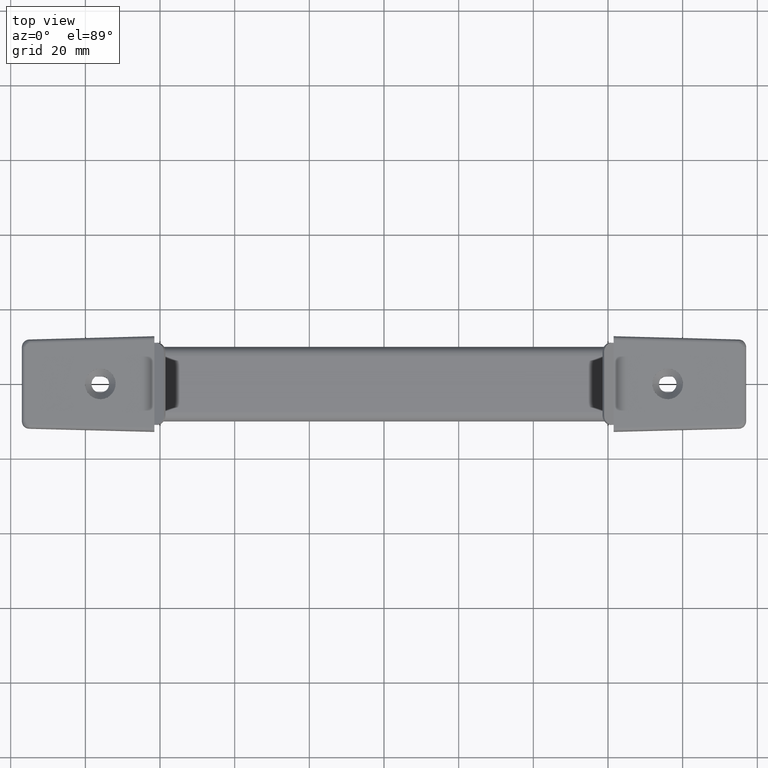
[diagram: clean part render]
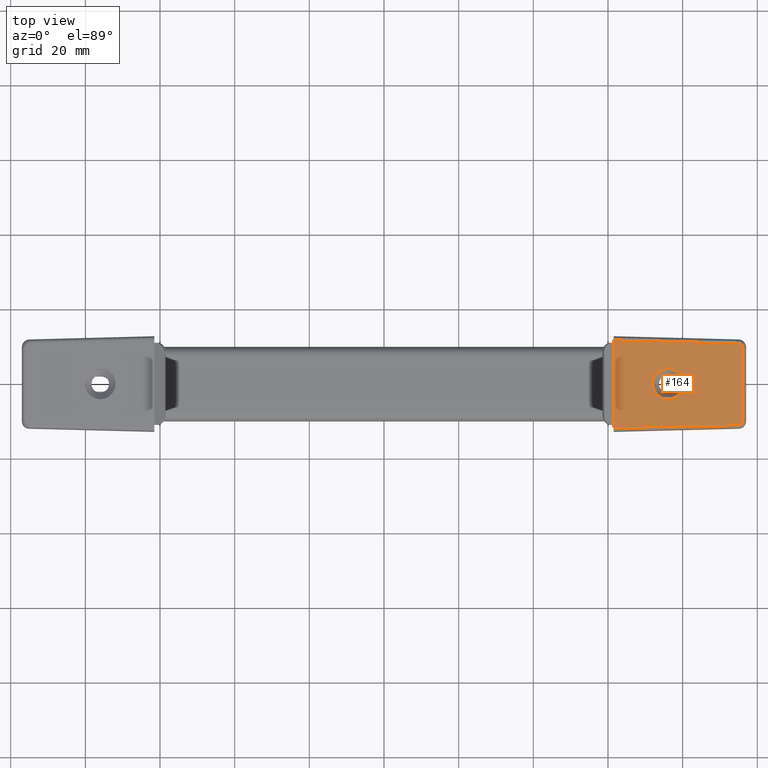
[diagram: same view with one face highlighted and labeled with its STEP entity id]
A machine part, top view. The second image highlights one B-rep face of the part: STEP entity #164.
In plain terms, the highlighted planar face has unit normal (0.0562, 0, 0.9984).
Its self-contained STEP definition (entity closure, byte-faithful):
#164=ADVANCED_FACE('',(#297,#298),#296,.T.);
#296=PLANE('',#1091);
#297=FACE_OUTER_BOUND('',#1092,.T.);
#298=FACE_BOUND('',#1093,.T.);
#1088=CARTESIAN_POINT('',(5.80448545443E+01,-1.41013067575E+01,8.69465608201E+00));
#1089=DIRECTION('',(5.62488327390E-02,0.00000000000E+00,9.98416781117E-01));
#1090=DIRECTION('',(9.98416781117E-01,0.00000000000E+00,-5.62488327390E-02));
#1091=AXIS2_PLACEMENT_3D('',#1088,#1089,#1090);
#1092=EDGE_LOOP('',(#1561,#1562,#1563,#1564,#1565,#1566,#1567,#1568));
#1093=EDGE_LOOP('',(#1569,#1570));
#1561=ORIENTED_EDGE('',*,*,#1931,.T.);
#1562=ORIENTED_EDGE('',*,*,#1956,.T.);
#1563=ORIENTED_EDGE('',*,*,#1941,.F.);
#1564=ORIENTED_EDGE('',*,*,#1957,.T.);
#1565=ORIENTED_EDGE('',*,*,#1958,.F.);
#1566=ORIENTED_EDGE('',*,*,#1959,.T.);
#1567=ORIENTED_EDGE('',*,*,#1960,.T.);
#1568=ORIENTED_EDGE('',*,*,#1961,.T.);
#1569=ORIENTED_EDGE('',*,*,#1962,.T.);
#1570=ORIENTED_EDGE('',*,*,#1963,.T.);
#1931=EDGE_CURVE('',#2129,#2144,#2151,.T.);
#1941=EDGE_CURVE('',#2212,#2219,#2220,.T.);
#1956=EDGE_CURVE('',#2144,#2219,#2320,.T.);
#1957=EDGE_CURVE('',#2212,#2326,#2327,.T.);
#1958=EDGE_CURVE('',#2333,#2326,#2334,.T.);
#1959=EDGE_CURVE('',#2333,#2340,#2341,.T.);
#1960=EDGE_CURVE('',#2340,#2347,#2348,.T.);
#1961=EDGE_CURVE('',#2347,#2129,#2354,.T.);
#1962=EDGE_CURVE('',#2360,#2361,#2362,.T.);
#1963=EDGE_CURVE('',#2361,#2360,#2368,.T.);
#2129=VERTEX_POINT('',#3464);
#2144=VERTEX_POINT('',#3474);
#2151=(BOUNDED_CURVE() B_SPLINE_CURVE(2,(#3479,#3480,#3481),.UNSPECIFIED.,.F.,.F.) B_SPLINE_CURVE_WITH_KNOTS((3,3),(4.51017001503E-12,1.54561260580E+00),.UNSPECIFIED.) CURVE() GEOMETRIC_REPRESENTATION_ITEM() RATIONAL_B_SPLINE_CURVE((1.00000000000E+00,7.15954278947E-01,1.00000000000E+00)) REPRESENTATION_ITEM('') );
#2212=VERTEX_POINT('',#3514);
#2219=VERTEX_POINT('',#3518);
#2220=(BOUNDED_CURVE() B_SPLINE_CURVE(1,(#3519,#3520),.UNSPECIFIED.,.F.,.F.) B_SPLINE_CURVE_WITH_KNOTS((2,2),(0.00000000000E+00,1.00000000000E+00),.UNSPECIFIED.) CURVE() GEOMETRIC_REPRESENTATION_ITEM() RATIONAL_B_SPLINE_CURVE((1.00000000000E+00,1.00000000000E+00)) REPRESENTATION_ITEM('') );
#2320=(BOUNDED_CURVE() B_SPLINE_CURVE(1,(#3576,#3577),.UNSPECIFIED.,.F.,.F.) B_SPLINE_CURVE_WITH_KNOTS((2,2),(0.00000000000E+00,1.00000000000E+00),.UNSPECIFIED.) CURVE() GEOMETRIC_REPRESENTATION_ITEM() RATIONAL_B_SPLINE_CURVE((1.00000000000E+00,1.00000000000E+00)) REPRESENTATION_ITEM('') );
#2326=VERTEX_POINT('',#3578);
#2327=LINE('',#3579,#3580);
#2333=VERTEX_POINT('',#3582);
#2334=(BOUNDED_CURVE() B_SPLINE_CURVE(1,(#3583,#3584),.UNSPECIFIED.,.F.,.F.) B_SPLINE_CURVE_WITH_KNOTS((2,2),(0.00000000000E+00,1.00000000000E+00),.UNSPECIFIED.) CURVE() GEOMETRIC_REPRESENTATION_ITEM() RATIONAL_B_SPLINE_CURVE((1.00000000000E+00,1.00000000000E+00)) REPRESENTATION_ITEM('') );
#2340=VERTEX_POINT('',#3585);
#2341=(BOUNDED_CURVE() B_SPLINE_CURVE(1,(#3586,#3587),.UNSPECIFIED.,.F.,.F.) B_SPLINE_CURVE_WITH_KNOTS((2,2),(0.00000000000E+00,1.00000000000E+00),.UNSPECIFIED.) CURVE() GEOMETRIC_REPRESENTATION_ITEM() RATIONAL_B_SPLINE_CURVE((1.00000000000E+00,1.00000000000E+00)) REPRESENTATION_ITEM('') );
#2347=VERTEX_POINT('',#3588);
#2348=(BOUNDED_CURVE() B_SPLINE_CURVE(2,(#3589,#3590,#3591),.UNSPECIFIED.,.F.,.F.) B_SPLINE_CURVE_WITH_KNOTS((3,3),(-1.54561260579E+00,3.73923114694E-12),.UNSPECIFIED.) CURVE() GEOMETRIC_REPRESENTATION_ITEM() RATIONAL_B_SPLINE_CURVE((1.00000000000E+00,7.15954278947E-01,1.00000000000E+00)) REPRESENTATION_ITEM('') );
#2354=LINE('',#3592,#3593);
#2360=VERTEX_POINT('',#3595);
#2361=VERTEX_POINT('',#3596);
#2362=(BOUNDED_CURVE() B_SPLINE_CURVE(2,(#3597,#3598,#3599,#3600,#3601),.UNSPECIFIED.,.F.,.F.) B_SPLINE_CURVE_WITH_KNOTS((3,2,3),(-6.28318530718E+00,-4.71238898038E+00,-3.14159264598E+00),.UNSPECIFIED.) CURVE() GEOMETRIC_REPRESENTATION_ITEM() RATIONAL_B_SPLINE_CURVE((1.00000000000E+00,7.07106781187E-01,1.00000000000E+00,7.07106781187E-01,1.00000000000E+00)) REPRESENTATION_ITEM('') );
#2368=(BOUNDED_CURVE() B_SPLINE_CURVE(2,(#3602,#3603,#3604,#3605,#3606),.UNSPECIFIED.,.F.,.F.) B_SPLINE_CURVE_WITH_KNOTS((3,2,3),(-3.14159264598E+00,-1.57079632679E+00,-0.00000000000E+00),.UNSPECIFIED.) CURVE() GEOMETRIC_REPRESENTATION_ITEM() RATIONAL_B_SPLINE_CURVE((1.00000000000E+00,7.07106781187E-01,1.00000000000E+00,7.07106781187E-01,1.00000000000E+00)) REPRESENTATION_ITEM('') );
#3464=CARTESIAN_POINT('',(9.60562611338E+01,9.90553255994E+00,6.55316838683E+00));
#3474=CARTESIAN_POINT('',(9.50814421929E+01,1.09052154668E+01,6.60808776378E+00));
#3479=CARTESIAN_POINT('',(9.60562611338E+01,9.90553255994E+00,6.55316838683E+00));
#3480=CARTESIAN_POINT('',(9.60562611338E+01,1.08806607073E+01,6.55316838683E+00));
#3481=CARTESIAN_POINT('',(9.50814421929E+01,1.09052154668E+01,6.60808776378E+00));
#3514=CARTESIAN_POINT('',(6.15000123012E+01,1.10000000016E+01,8.49997538245E+00));
#3518=CARTESIAN_POINT('',(6.15004369615E+01,1.17510889642E+01,8.49997538245E+00));
#3519=CARTESIAN_POINT('',(6.15000123011E+01,1.10000000016E+01,8.49997538245E+00));
#3520=CARTESIAN_POINT('',(6.15004369615E+01,1.17510889642E+01,8.49997538245E+00));
#3576=CARTESIAN_POINT('',(9.50814421929E+01,1.09052154668E+01,6.60808776378E+00));
#3577=CARTESIAN_POINT('',(6.15004369615E+01,1.17510889642E+01,8.49997538245E+00));
#3578=CARTESIAN_POINT('',(6.15000123012E+01,-1.09999999998E+01,8.49997538245E+00));
#3579=CARTESIAN_POINT('',(6.15000123012E+01,1.10000000016E+01,8.49997538245E+00));
#3580=VECTOR('',#3581,2.20000000014E+01);
#3581=DIRECTION('',(0.00000000000E+00,-1.00000000000E+00,0.00000000000E+00));
#3582=CARTESIAN_POINT('',(6.15004369615E+01,-1.17510889646E+01,8.49997538245E+00));
#3583=CARTESIAN_POINT('',(6.15004369615E+01,-1.17510889646E+01,8.49997538245E+00));
#3584=CARTESIAN_POINT('',(6.15000123012E+01,-1.09999999998E+01,8.49997538245E+00));
#3585=CARTESIAN_POINT('',(9.50814421930E+01,-1.09052154669E+01,6.60808776378E+00));
#3586=CARTESIAN_POINT('',(6.15004369615E+01,-1.17510889646E+01,8.49997538245E+00));
#3587=CARTESIAN_POINT('',(9.50814421930E+01,-1.09052154669E+01,6.60808776378E+00));
#3588=CARTESIAN_POINT('',(9.60562611339E+01,-9.90553256007E+00,6.55316838682E+00));
#3589=CARTESIAN_POINT('',(9.50814421930E+01,-1.09052154669E+01,6.60808776378E+00));
#3590=CARTESIAN_POINT('',(9.60562611339E+01,-1.08806607074E+01,6.55316838682E+00));
#3591=CARTESIAN_POINT('',(9.60562611339E+01,-9.90553256007E+00,6.55316838682E+00));
#3592=CARTESIAN_POINT('',(9.60562611339E+01,-9.90553256005E+00,6.55316838682E+00));
#3593=VECTOR('',#3594,1.98110651200E+01);
#3594=DIRECTION('',(-3.77022900741E-12,1.00000000000E+00,2.12416108223E-13));
#3595=CARTESIAN_POINT('',(8.01000123012E+01,-5.31218994535E-16,7.45211198303E+00));
#3596=CARTESIAN_POINT('',(7.19000123012E+01,2.80776237010E-08,7.91408381402E+00));
#3597=CARTESIAN_POINT('',(8.01000123012E+01,-1.00417721013E-15,7.45211198303E+00));
#3598=CARTESIAN_POINT('',(8.01000123012E+01,-4.10000000000E+00,7.45211198303E+00));
#3599=CARTESIAN_POINT('',(7.60000123012E+01,-4.10000000000E+00,7.68309789852E+00));
#3600=CARTESIAN_POINT('',(7.19000123012E+01,-4.10000000000E+00,7.91408381402E+00));
#3601=CARTESIAN_POINT('',(7.19000123012E+01,5.02088605067E-16,7.91408381402E+00));
#3602=CARTESIAN_POINT('',(7.19000123012E+01,5.02088605067E-16,7.91408381402E+00));
#3603=CARTESIAN_POINT('',(7.19000123012E+01,4.10000000000E+00,7.91408381402E+00));
#3604=CARTESIAN_POINT('',(7.60000123012E+01,4.10000000000E+00,7.68309789852E+00));
#3605=CARTESIAN_POINT('',(8.01000123012E+01,4.10000000000E+00,7.45211198303E+00));
#3606=CARTESIAN_POINT('',(8.01000123012E+01,0.00000000000E+00,7.45211198303E+00));